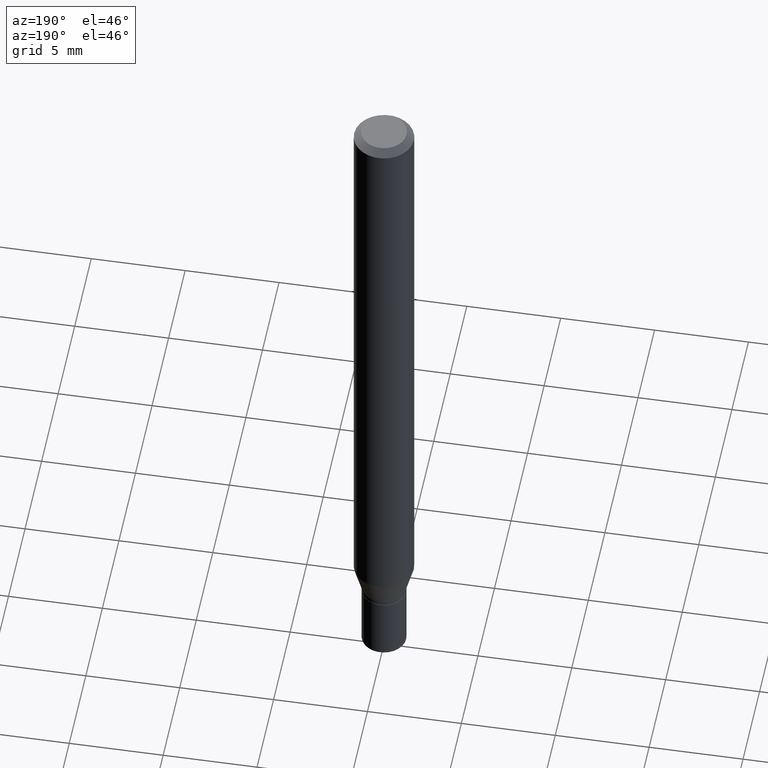
[diagram: clean part render]
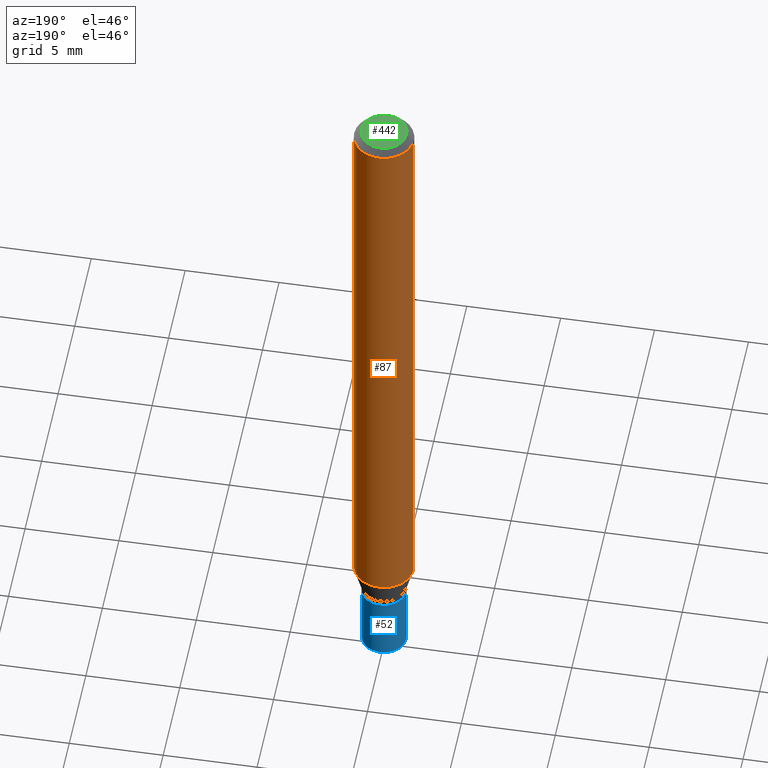
[diagram: same view with three faces highlighted in distinct colors, each labeled with its STEP entity id]
A machine part, auxiliary view with three faces highlighted in distinct colors.
Their STEP definitions:

[orange] entity #87 — the highlighted cylindrical surface (edge-blend (fillet) strip) has radius 1.5875 mm, axis along (-0, 0, 1).
#2 = EDGE_CURVE ( 'NONE', #344, #132, #3, .T. ) ;
#3 = CIRCLE ( 'NONE', #209, 0.06250000000000000000 ) ;
#13 = VERTEX_POINT ( 'NONE', #392 ) ;
#15 = ORIENTED_EDGE ( 'NONE', *, *, #89, .T. ) ;
#22 = AXIS2_PLACEMENT_3D ( 'NONE', #416, #191, #198 ) ;
#36 = LINE ( 'NONE', #143, #282 ) ;
#44 = VECTOR ( 'NONE', #379, 39.37007874015748143 ) ;
#59 = DIRECTION ( 'NONE',  ( 1.000000000000000000, -6.982962677686266711E-15, 4.876176775795935793E-29 ) ) ;
#66 = DIRECTION ( 'NONE',  ( 1.000000000000000000, -6.982962677686266711E-15, 0.000000000000000000 ) ) ;
#69 = CARTESIAN_POINT ( 'NONE',  ( 0.000000000000000000, 0.000000000000000000, 0.000000000000000000 ) ) ;
#73 = CARTESIAN_POINT ( 'NONE',  ( 3.668203209277705088E-31, -5.237222008264718399E-17, -0.01499999999999999944 ) ) ;
#87 = ADVANCED_FACE ( 'NONE', ( #101 ), #376, .T. ) ;
#89 = EDGE_CURVE ( 'NONE', #145, #13, #108, .T. ) ;
#101 = FACE_OUTER_BOUND ( 'NONE', #150, .T. ) ;
#104 = CARTESIAN_POINT ( 'NONE',  ( -0.06250000000000000000, -1.834603717908454421E-15, -0.01499999999999999944 ) ) ;
#108 = CIRCLE ( 'NONE', #22, 0.06250000000000000000 ) ;
#129 = DIRECTION ( 'NONE',  ( -2.445468806185136597E-29, 3.491481338843145583E-15, 1.000000000000000000 ) ) ;
#132 = VERTEX_POINT ( 'NONE', #104 ) ;
#138 = DIRECTION ( 'NONE',  ( -2.445468806185136877E-29, 3.491481338843145188E-15, 1.000000000000000000 ) ) ;
#143 = CARTESIAN_POINT ( 'NONE',  ( -0.06250000000000000000, 4.440892098500626162E-16, -3.074334431409316114E-30 ) ) ;
#144 = CARTESIAN_POINT ( 'NONE',  ( 0.06250000000000000000, -4.888073874380388472E-16, -0.01499999999999999944 ) ) ;
#145 = VERTEX_POINT ( 'NONE', #304 ) ;
#150 = EDGE_LOOP ( 'NONE', ( #15, #445, #250, #208 ) ) ;
#191 = DIRECTION ( 'NONE',  ( -2.445468806185136597E-29, 3.491481338843145583E-15, 1.000000000000000000 ) ) ;
#197 = DIRECTION ( 'NONE',  ( -2.445468806185136597E-29, 3.491481338843145583E-15, 1.000000000000000000 ) ) ;
#198 = DIRECTION ( 'NONE',  ( 1.000000000000000000, -6.982962677686262766E-15, 0.000000000000000000 ) ) ;
#204 = EDGE_CURVE ( 'NONE', #13, #132, #36, .T. ) ;
#208 = ORIENTED_EDGE ( 'NONE', *, *, #273, .F. ) ;
#209 = AXIS2_PLACEMENT_3D ( 'NONE', #73, #197, #66 ) ;
#225 = CARTESIAN_POINT ( 'NONE',  ( 0.06250000000000000000, -4.364351673553916694E-16, 3.047610484872459871E-30 ) ) ;
#232 = LINE ( 'NONE', #225, #44 ) ;
#250 = ORIENTED_EDGE ( 'NONE', *, *, #2, .F. ) ;
#273 = EDGE_CURVE ( 'NONE', #145, #344, #232, .T. ) ;
#282 = VECTOR ( 'NONE', #138, 39.37007874015748143 ) ;
#304 = CARTESIAN_POINT ( 'NONE',  ( 0.06250000000000000000, -4.941448802789779058E-15, -1.290287187078897890 ) ) ;
#344 = VERTEX_POINT ( 'NONE', #144 ) ;
#376 = CYLINDRICAL_SURFACE ( 'NONE', #462, 0.06250000000000000000 ) ;
#379 = DIRECTION ( 'NONE',  ( -2.445468806185136877E-29, 3.491481338843145188E-15, 1.000000000000000000 ) ) ;
#392 = CARTESIAN_POINT ( 'NONE',  ( -0.06250000000000000000, -4.060924425584323984E-15, -1.290287187078897890 ) ) ;
#416 = CARTESIAN_POINT ( 'NONE',  ( 3.155357067021810605E-29, -4.505013635434386600E-15, -1.290287187078897890 ) ) ;
#445 = ORIENTED_EDGE ( 'NONE', *, *, #204, .T. ) ;
#462 = AXIS2_PLACEMENT_3D ( 'NONE', #69, #129, #59 ) ;

[blue] entity #52 — the highlighted cylindrical surface (edge-blend (fillet) strip) has radius 1.1811 mm, axis along (-0, 0, 1).
#21 = CARTESIAN_POINT ( 'NONE',  ( 3.668203209277704895E-29, -5.237222008264718177E-15, -1.500000000000000222 ) ) ;
#43 = AXIS2_PLACEMENT_3D ( 'NONE', #299, #264, #272 ) ;
#52 = ADVANCED_FACE ( 'NONE', ( #343 ), #466, .T. ) ;
#60 = CARTESIAN_POINT ( 'NONE',  ( 3.325837576411786624E-29, -4.748414620826679034E-15, -1.360000000000000320 ) ) ;
#70 = VECTOR ( 'NONE', #223, 39.37007874015748143 ) ;
#82 = DIRECTION ( 'NONE',  ( -2.445468806185136877E-29, 3.491481338843145188E-15, 1.000000000000000000 ) ) ;
#109 = CIRCLE ( 'NONE', #374, 0.04649999999999999967 ) ;
#114 = CARTESIAN_POINT ( 'NONE',  ( -0.04649999999999999967, -4.662415942417251725E-15, -1.360000000000000320 ) ) ;
#125 = EDGE_LOOP ( 'NONE', ( #193, #288, #402, #151 ) ) ;
#146 = VERTEX_POINT ( 'NONE', #114 ) ;
#151 = ORIENTED_EDGE ( 'NONE', *, *, #177, .F. ) ;
#154 = VECTOR ( 'NONE', #82, 39.37007874015748143 ) ;
#177 = EDGE_CURVE ( 'NONE', #444, #325, #436, .T. ) ;
#192 = DIRECTION ( 'NONE',  ( 1.000000000000000000, -6.982962677686260400E-15, 0.000000000000000000 ) ) ;
#193 = ORIENTED_EDGE ( 'NONE', *, *, #411, .T. ) ;
#213 = DIRECTION ( 'NONE',  ( 1.000000000000000000, -6.982962677686260400E-15, 0.000000000000000000 ) ) ;
#220 = EDGE_CURVE ( 'NONE', #325, #146, #109, .T. ) ;
#223 = DIRECTION ( 'NONE',  ( -2.445468806185136877E-29, 3.491481338843145188E-15, 1.000000000000000000 ) ) ;
#227 = DIRECTION ( 'NONE',  ( -2.445468806185136597E-29, 3.491481338843145583E-15, 1.000000000000000000 ) ) ;
#242 = CARTESIAN_POINT ( 'NONE',  ( -0.04649999999999999967, -4.662415942417251725E-15, -1.500000000000000222 ) ) ;
#254 = EDGE_CURVE ( 'NONE', #323, #146, #461, .T. ) ;
#264 = DIRECTION ( 'NONE',  ( -2.445468806185136597E-29, 3.491481338843145583E-15, 1.000000000000000000 ) ) ;
#272 = DIRECTION ( 'NONE',  ( 1.000000000000000000, -6.982962677686267499E-15, 4.876176775795936353E-29 ) ) ;
#288 = ORIENTED_EDGE ( 'NONE', *, *, #254, .T. ) ;
#296 = CARTESIAN_POINT ( 'NONE',  ( -0.04649999999999999967, 3.304023721284465841E-16, -2.287304816968531530E-30 ) ) ;
#299 = CARTESIAN_POINT ( 'NONE',  ( 0.000000000000000000, 0.000000000000000000, 0.000000000000000000 ) ) ;
#307 = CARTESIAN_POINT ( 'NONE',  ( 0.04649999999999999967, -3.247077645124114474E-16, 2.267422200745110326E-30 ) ) ;
#321 = CIRCLE ( 'NONE', #381, 0.04649999999999999967 ) ;
#323 = VERTEX_POINT ( 'NONE', #242 ) ;
#325 = VERTEX_POINT ( 'NONE', #356 ) ;
#343 = FACE_OUTER_BOUND ( 'NONE', #125, .T. ) ;
#356 = CARTESIAN_POINT ( 'NONE',  ( 0.04649999999999999967, -5.073122385339090530E-15, -1.360000000000000320 ) ) ;
#374 = AXIS2_PLACEMENT_3D ( 'NONE', #60, #227, #192 ) ;
#381 = AXIS2_PLACEMENT_3D ( 'NONE', #21, #449, #213 ) ;
#402 = ORIENTED_EDGE ( 'NONE', *, *, #220, .F. ) ;
#408 = CARTESIAN_POINT ( 'NONE',  ( 0.04649999999999999967, -5.561929772777129673E-15, -1.500000000000000222 ) ) ;
#411 = EDGE_CURVE ( 'NONE', #444, #323, #321, .T. ) ;
#436 = LINE ( 'NONE', #307, #154 ) ;
#444 = VERTEX_POINT ( 'NONE', #408 ) ;
#449 = DIRECTION ( 'NONE',  ( -2.445468806185136597E-29, 3.491481338843145583E-15, 1.000000000000000000 ) ) ;
#461 = LINE ( 'NONE', #296, #70 ) ;
#466 = CYLINDRICAL_SURFACE ( 'NONE', #43, 0.04649999999999999967 ) ;

[green] entity #442 — the highlighted planar face has unit normal (0, -0, -1).
#18 = EDGE_LOOP ( 'NONE', ( #359, #88 ) ) ;
#26 = DIRECTION ( 'NONE',  ( -2.445468806185136597E-29, 3.491481338843145583E-15, 1.000000000000000000 ) ) ;
#62 = CIRCLE ( 'NONE', #333, 0.04749999999999999362 ) ;
#64 = CARTESIAN_POINT ( 'NONE',  ( -2.121106073929386760E-45, 3.028377322213383622E-31, 8.673617379884936499E-17 ) ) ;
#88 = ORIENTED_EDGE ( 'NONE', *, *, #142, .T. ) ;
#142 = EDGE_CURVE ( 'NONE', #231, #330, #281, .T. ) ;
#155 = CARTESIAN_POINT ( 'NONE',  ( 3.316907271900976096E-16, 0.04749999999999999362, -1.224772766956247324E-16 ) ) ;
#187 = DIRECTION ( 'NONE',  ( -2.445468806185136597E-29, 3.491481338843145583E-15, 1.000000000000000000 ) ) ;
#231 = VERTEX_POINT ( 'NONE', #417 ) ;
#245 = CARTESIAN_POINT ( 'NONE',  ( -0.04749999999999999362, 3.578768372314211985E-16, 8.673617379884694910E-17 ) ) ;
#256 = DIRECTION ( 'NONE',  ( 2.438088387897960049E-29, -3.491481338843145188E-15, -1.000000000000000000 ) ) ;
#281 = CIRCLE ( 'NONE', #346, 0.04749999999999999362 ) ;
#292 = DIRECTION ( 'NONE',  ( 1.000000000000000000, -6.982962677686267499E-15, 4.884662768193073002E-29 ) ) ;
#330 = VERTEX_POINT ( 'NONE', #245 ) ;
#331 = FACE_OUTER_BOUND ( 'NONE', #18, .T. ) ;
#333 = AXIS2_PLACEMENT_3D ( 'NONE', #414, #187, #292 ) ;
#337 = PLANE ( 'NONE',  #389 ) ;
#346 = AXIS2_PLACEMENT_3D ( 'NONE', #64, #26, #384 ) ;
#359 = ORIENTED_EDGE ( 'NONE', *, *, #399, .T. ) ;
#384 = DIRECTION ( 'NONE',  ( 1.000000000000000000, -6.982962677686267499E-15, 4.884662768193073002E-29 ) ) ;
#389 = AXIS2_PLACEMENT_3D ( 'NONE', #155, #256, #412 ) ;
#399 = EDGE_CURVE ( 'NONE', #330, #231, #62, .T. ) ;
#412 = DIRECTION ( 'NONE',  ( -1.000000000000000000, 6.982962677686265922E-15, -4.876176775795935793E-29 ) ) ;
#414 = CARTESIAN_POINT ( 'NONE',  ( -2.121106073929386760E-45, 3.028377322213383622E-31, 8.673617379884936499E-17 ) ) ;
#417 = CARTESIAN_POINT ( 'NONE',  ( 0.04749999999999999362, -4.035134999187577144E-16, 8.673617379885194112E-17 ) ) ;
#442 = ADVANCED_FACE ( 'NONE', ( #331 ), #337, .F. ) ;